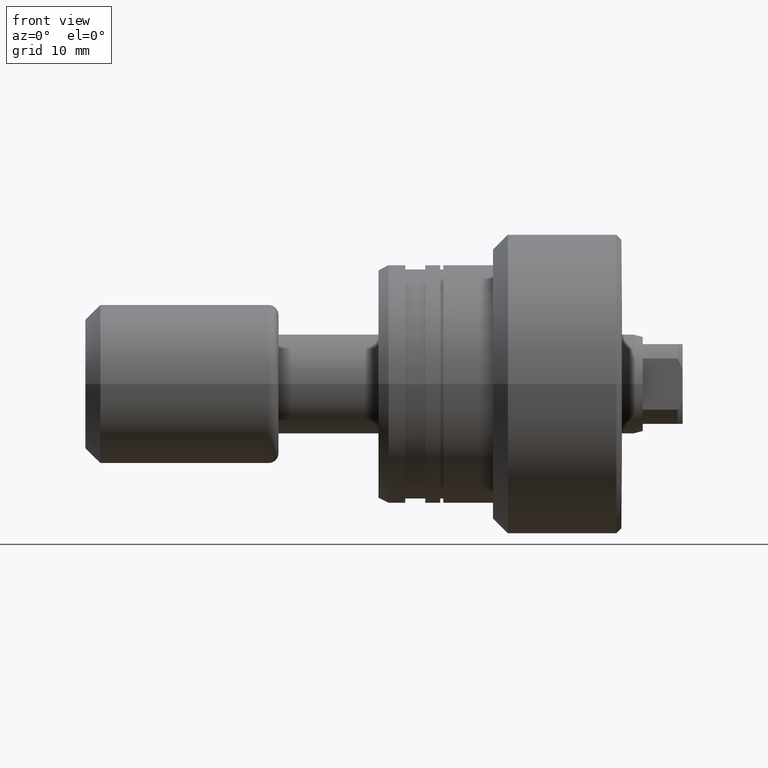
[diagram: clean part render]
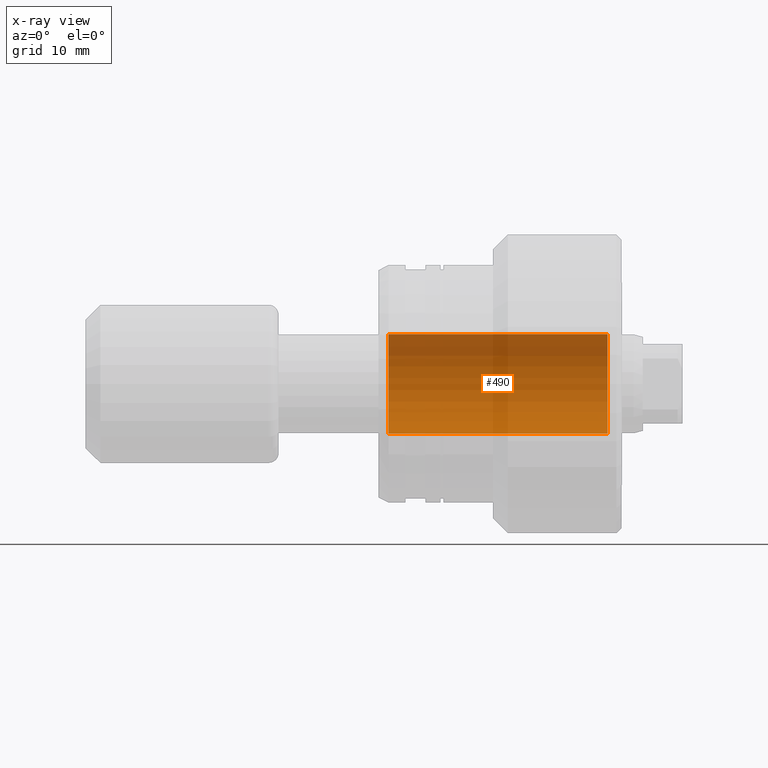
[diagram: x-ray — body ghosted, one internal face saturated and labeled with its STEP entity id]
A machine part, front view, then the same camera in x-ray: the body is ghosted and one INTERNAL B-rep face — a face not visible from any outside direction — is saturated and labeled: STEP entity #490.
In plain terms, the highlighted cylindrical surface (partial cylindrical patch) has radius 5 mm, axis along (1, 0, 0).
Its self-contained STEP definition (entity closure, byte-faithful):
#14 = DIRECTION ( 'NONE',  ( 0.000000000000000000, 0.000000000000000000, 1.000000000000000000 ) ) ;
#97 = AXIS2_PLACEMENT_3D ( 'NONE', #337, #1658, #494 ) ;
#268 = DIRECTION ( 'NONE',  ( 1.000000000000000000, -0.000000000000000000, -0.000000000000000000 ) ) ;
#337 = CARTESIAN_POINT ( 'NONE',  ( -38.64213562373095101, 0.000000000000000000, 0.000000000000000000 ) ) ;
#382 = CARTESIAN_POINT ( 'NONE',  ( -23.49999999999997868, 6.123233995736766282E-16, 5.000000000000000000 ) ) ;
#434 = CARTESIAN_POINT ( 'NONE',  ( -23.49999999999997868, 0.000000000000000000, 0.000000000000000000 ) ) ;
#478 = ORIENTED_EDGE ( 'NONE', *, *, #863, .F. ) ;
#484 = CARTESIAN_POINT ( 'NONE',  ( -38.64213562373095101, 0.000000000000000000, -5.000000000000000000 ) ) ;
#490 = ADVANCED_FACE ( 'NONE', ( #1825 ), #2041, .F. ) ;
#494 = DIRECTION ( 'NONE',  ( 0.000000000000000000, 0.000000000000000000, -1.000000000000000000 ) ) ;
#502 = CIRCLE ( 'NONE', #732, 5.000000000000000000 ) ;
#716 = VERTEX_POINT ( 'NONE', #1761 ) ;
#732 = AXIS2_PLACEMENT_3D ( 'NONE', #434, #1184, #14 ) ;
#733 = VECTOR ( 'NONE', #1285, 1000.000000000000000 ) ;
#784 = EDGE_LOOP ( 'NONE', ( #478, #1624, #2154, #2420 ) ) ;
#863 = EDGE_CURVE ( 'NONE', #1062, #2397, #2216, .T. ) ;
#947 = DIRECTION ( 'NONE',  ( 1.000000000000000000, 0.000000000000000000, 0.000000000000000000 ) ) ;
#970 = DIRECTION ( 'NONE',  ( 0.000000000000000000, 0.000000000000000000, -1.000000000000000000 ) ) ;
#1062 = VERTEX_POINT ( 'NONE', #382 ) ;
#1184 = DIRECTION ( 'NONE',  ( -1.000000000000000000, -0.000000000000000000, -0.000000000000000000 ) ) ;
#1245 = CARTESIAN_POINT ( 'NONE',  ( -1.500000000000000000, 0.000000000000000000, -5.000000000000000000 ) ) ;
#1285 = DIRECTION ( 'NONE',  ( 1.000000000000000000, -0.000000000000000000, -0.000000000000000000 ) ) ;
#1316 = AXIS2_PLACEMENT_3D ( 'NONE', #2119, #947, #970 ) ;
#1624 = ORIENTED_EDGE ( 'NONE', *, *, #1951, .T. ) ;
#1650 = VECTOR ( 'NONE', #268, 1000.000000000000000 ) ;
#1658 = DIRECTION ( 'NONE',  ( 1.000000000000000000, -0.000000000000000000, -0.000000000000000000 ) ) ;
#1761 = CARTESIAN_POINT ( 'NONE',  ( -23.49999999999997868, 0.000000000000000000, -5.000000000000000000 ) ) ;
#1802 = CIRCLE ( 'NONE', #1316, 5.000000000000000000 ) ;
#1812 = CARTESIAN_POINT ( 'NONE',  ( -38.64213562373095101, 6.123233995736766282E-16, 5.000000000000000000 ) ) ;
#1825 = FACE_OUTER_BOUND ( 'NONE', #784, .T. ) ;
#1951 = EDGE_CURVE ( 'NONE', #1062, #716, #502, .T. ) ;
#1988 = LINE ( 'NONE', #484, #1650 ) ;
#2041 = CYLINDRICAL_SURFACE ( 'NONE', #97, 5.000000000000000000 ) ;
#2103 = EDGE_CURVE ( 'NONE', #716, #2129, #1988, .T. ) ;
#2119 = CARTESIAN_POINT ( 'NONE',  ( -1.500000000000000000, 0.000000000000000000, 0.000000000000000000 ) ) ;
#2129 = VERTEX_POINT ( 'NONE', #1245 ) ;
#2154 = ORIENTED_EDGE ( 'NONE', *, *, #2103, .T. ) ;
#2216 = LINE ( 'NONE', #1812, #733 ) ;
#2305 = CARTESIAN_POINT ( 'NONE',  ( -1.500000000000000000, 6.123233995736766282E-16, 5.000000000000000000 ) ) ;
#2380 = EDGE_CURVE ( 'NONE', #2129, #2397, #1802, .T. ) ;
#2397 = VERTEX_POINT ( 'NONE', #2305 ) ;
#2420 = ORIENTED_EDGE ( 'NONE', *, *, #2380, .T. ) ;